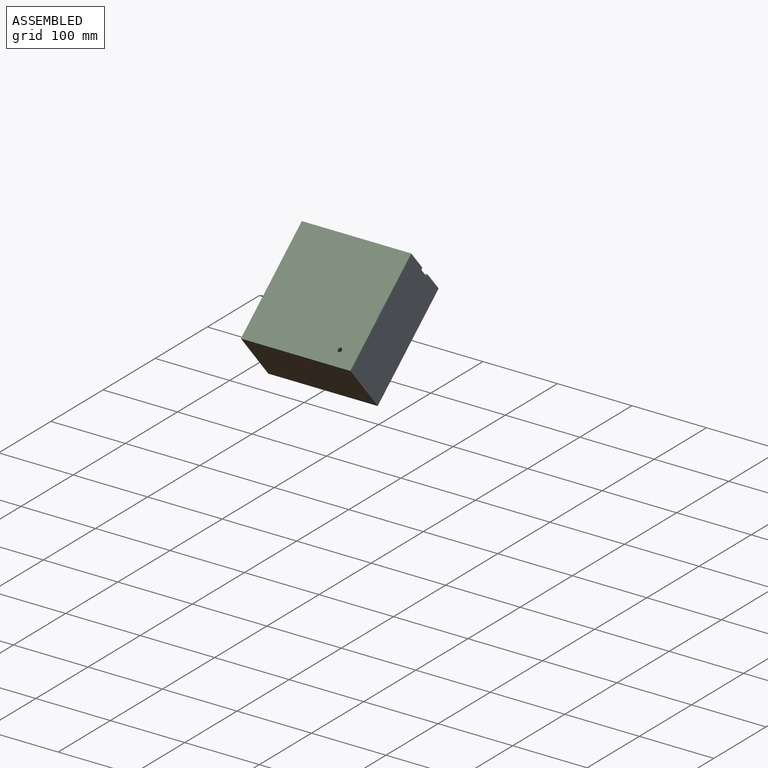
[diagram: assembled view]
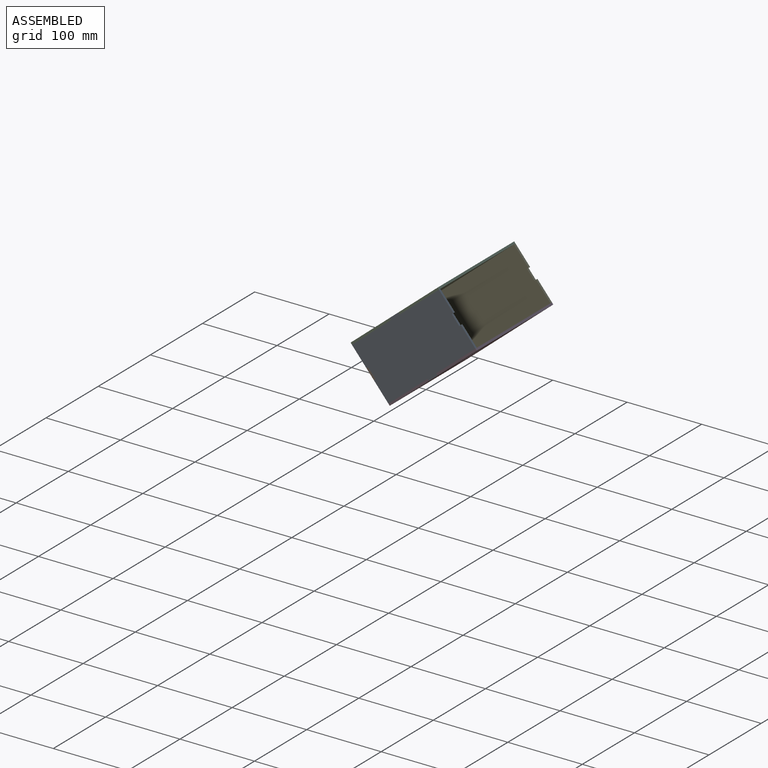
[diagram: assembled view, second angle]
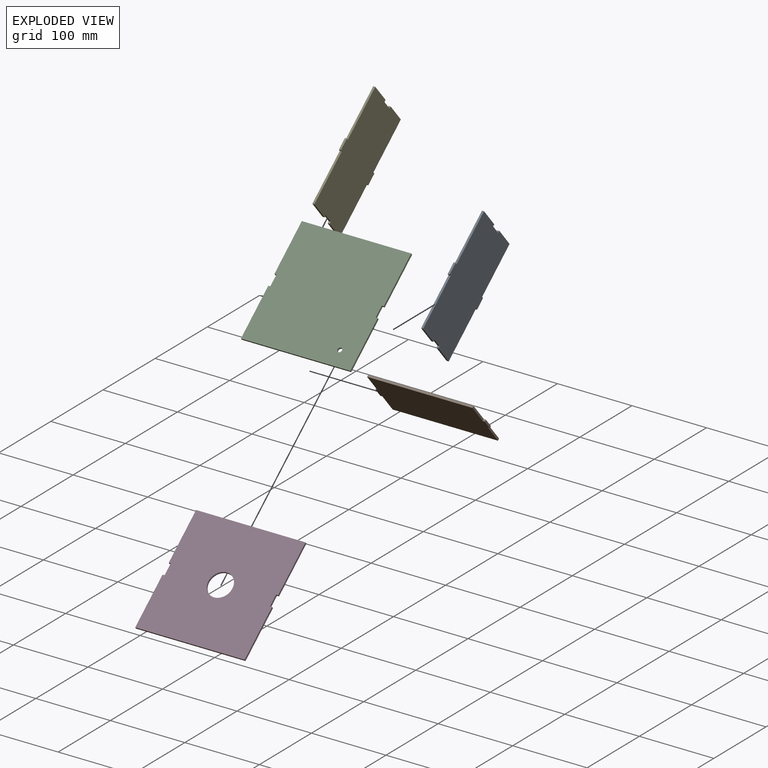
[diagram: exploded view]
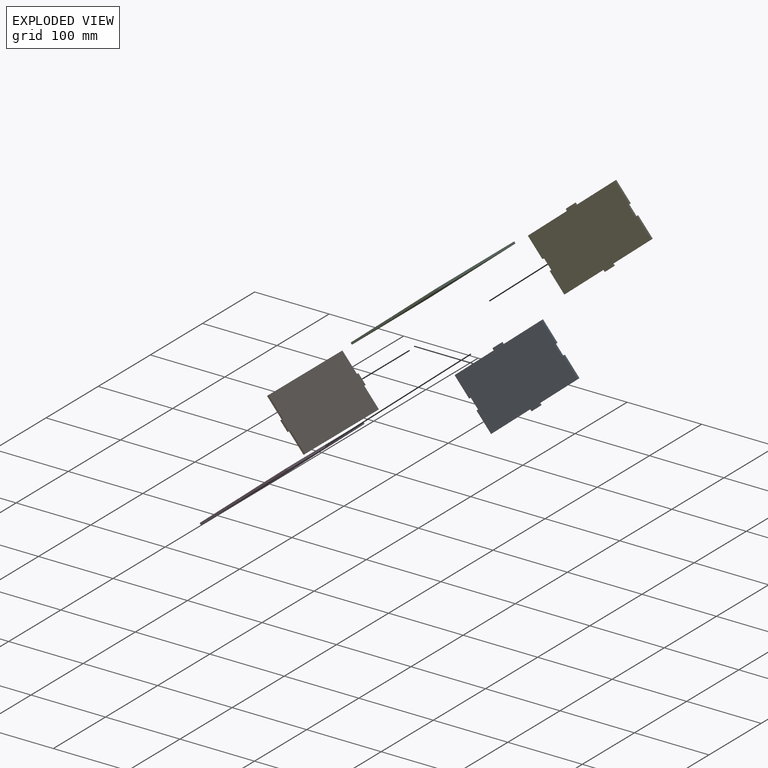
[diagram: exploded view, second angle]
ASSEMBLY  parts=5 mates=4
PART A: 22 faces, bbox 81.7x2.7x152.4 mm
  f0: plane 2.74x2.74mm, normal (1,0,0), area 7.5mm2, adj f1,f19,f20,f21
  f1: plane 15.24x2.74mm, normal (0,0,-1), area 41.8mm2, adj f0,f2,f20,f21
  f2: plane 2.74x2.74mm, normal (-1,0,0), area 7.5mm2, adj f1,f3,f20,f21
  f3: plane 30.48x2.74mm, normal (0,0,-1), area 83.6mm2, adj f2,f4,f20,f21
  f4: plane 68.58x2.74mm, normal (1,0,0), area 188.1mm2, adj f3,f5,f20,f21
  f5: plane 2.74x2.74mm, normal (0,0,-1), area 7.5mm2, adj f4,f6,f20,f21
  f6: plane 15.24x2.74mm, normal (1,0,0), area 41.8mm2, adj f5,f7,f20,f21
  f7: plane 2.74x2.74mm, normal (0,0,1), area 7.5mm2, adj f6,f8,f20,f21
  f8: plane 68.58x2.74mm, normal (1,0,0), area 188.1mm2, adj f7,f9,f20,f21
  f9: plane 30.48x2.74mm, normal (0,0,1), area 83.6mm2, adj f8,f10,f20,f21
  f10: plane 2.74x2.74mm, normal (-1,0,0), area 7.5mm2, adj f9,f11,f20,f21
  f11: plane 15.24x2.74mm, normal (0,0,1), area 41.8mm2, adj f10,f12,f20,f21
  f12: plane 2.74x2.74mm, normal (1,0,0), area 7.5mm2, adj f11,f13,f20,f21
  f13: plane 30.48x2.74mm, normal (0,0,1), area 83.6mm2, adj f12,f14,f20,f21
  f14: plane 68.58x2.74mm, normal (-1,0,0), area 188.1mm2, adj f13,f15,f20,f21
  f15: plane 2.74x2.74mm, normal (0,0,1), area 7.5mm2, adj f14,f16,f20,f21
  f16: plane 15.24x2.74mm, normal (-1,0,0), area 41.8mm2, adj f15,f17,f20,f21
  f17: plane 2.74x2.74mm, normal (0,0,-1), area 7.5mm2, adj f16,f18,f20,f21
  f18: plane 68.58x2.74mm, normal (-1,0,0), area 188.1mm2, adj f17,f19,f20,f21
  f19: plane 30.48x2.74mm, normal (0,0,-1), area 83.6mm2, adj f0,f18,f20,f21
  f20: plane 152.4x81.69mm, normal (0,-1,0), area 11612.9mm2, adj f0,f1,f2,f3,f4,f5,f6,f7
  f21: plane 152.4x81.69mm, normal (0,1,0), area 11612.9mm2, adj f0,f1,f2,f3,f4,f5,f6,f7
PART B: 14 faces, bbox 146.9x2.7x76.2 mm
  f0: plane 30.48x2.74mm, normal (1,0,0), area 83.6mm2, adj f1,f11,f12,f13
  f1: plane 141.4x2.74mm, normal (0,0,1), area 387.9mm2, adj f0,f2,f12,f13
  f2: plane 30.48x2.74mm, normal (-1,0,0), area 83.6mm2, adj f1,f3,f12,f13
  f3: plane 2.74x2.74mm, normal (0,0,1), area 7.5mm2, adj f2,f4,f12,f13
  f4: plane 15.24x2.74mm, normal (-1,0,0), area 41.8mm2, adj f3,f5,f12,f13
  f5: plane 2.74x2.74mm, normal (0,0,-1), area 7.5mm2, adj f4,f6,f12,f13
  f6: plane 30.48x2.74mm, normal (-1,0,0), area 83.6mm2, adj f5,f7,f12,f13
  f7: plane 141.4x2.74mm, normal (0,0,-1), area 387.9mm2, adj f6,f8,f12,f13
  f8: plane 30.48x2.74mm, normal (1,0,0), area 83.6mm2, adj f7,f9,f12,f13
  f9: plane 2.74x2.74mm, normal (0,0,-1), area 7.5mm2, adj f8,f10,f12,f13
  f10: plane 15.24x2.74mm, normal (1,0,0), area 41.8mm2, adj f9,f11,f12,f13
  f11: plane 2.74x2.74mm, normal (0,0,1), area 7.5mm2, adj f0,f10,f12,f13
  f12: plane 146.89x76.2mm, normal (0,-1,0), area 10858.4mm2, adj f0,f1,f2,f3,f4,f5,f6,f7
  f13: plane 146.89x76.2mm, normal (0,1,0), area 10858.4mm2, adj f0,f1,f2,f3,f4,f5,f6,f7
PART C: 15 faces, bbox 146.9x2.7x152.4 mm
  f0: plane 2.74x2.74mm, normal (0,0,1), area 7.5mm2, adj f1,f12,f13,f14
  f1: plane 68.58x2.74mm, normal (-1,0,0), area 188.1mm2, adj f0,f2,f13,f14
  f2: plane 146.89x2.74mm, normal (0,0,-1), area 402.9mm2, adj f1,f3,f13,f14
  f3: plane 68.58x2.74mm, normal (1,0,0), area 188.1mm2, adj f2,f4,f13,f14
  f4: plane 2.74x2.74mm, normal (0,0,1), area 7.5mm2, adj f3,f5,f13,f14
  f5: plane 15.24x2.74mm, normal (1,0,0), area 41.8mm2, adj f4,f6,f13,f14
  f6: plane 2.74x2.74mm, normal (0,0,-1), area 7.5mm2, adj f5,f7,f13,f14
  f7: plane 68.58x2.74mm, normal (1,0,0), area 188.1mm2, adj f6,f8,f13,f14
  f8: plane 146.89x2.74mm, normal (0,0,1), area 402.9mm2, adj f7,f9,f13,f14
  f9: plane 68.58x2.74mm, normal (-1,0,0), area 188.1mm2, adj f8,f10,f13,f14
  f10: plane 2.74x2.74mm, normal (0,0,-1), area 7.5mm2, adj f9,f12,f13,f14
  f11: cylinder r=2.92mm len=5.84mm, axis (0,1,0), area 50.3mm2, adj f13,f14
  f12: plane 15.24x2.74mm, normal (-1,0,0), area 41.8mm2, adj f0,f10,f13,f14
  f13: plane 152.4x146.89mm, normal (0,-1,0), area 22275.3mm2, adj f0,f1,f2,f3,f4,f5,f6,f7
  f14: plane 152.4x146.89mm, normal (0,1,0), area 22275.3mm2, adj f0,f1,f2,f3,f4,f5,f6,f7
PART D: 15 faces, bbox 146.9x2.7x152.4 mm
  f0: plane 2.74x2.74mm, normal (0,0,1), area 7.5mm2, adj f1,f12,f13,f14
  f1: plane 68.58x2.74mm, normal (-1,0,0), area 188.1mm2, adj f0,f2,f13,f14
  f2: plane 146.89x2.74mm, normal (0,0,-1), area 402.9mm2, adj f1,f3,f13,f14
  f3: plane 68.58x2.74mm, normal (1,0,0), area 188.1mm2, adj f2,f4,f13,f14
  f4: plane 2.74x2.74mm, normal (0,0,1), area 7.5mm2, adj f3,f5,f13,f14
  f5: plane 15.24x2.74mm, normal (1,0,0), area 41.8mm2, adj f4,f6,f13,f14
  f6: plane 2.74x2.74mm, normal (0,0,-1), area 7.5mm2, adj f5,f7,f13,f14
  f7: plane 68.58x2.74mm, normal (1,0,0), area 188.1mm2, adj f6,f8,f13,f14
  f8: plane 146.89x2.74mm, normal (0,0,1), area 402.9mm2, adj f7,f9,f13,f14
  f9: plane 68.58x2.74mm, normal (-1,0,0), area 188.1mm2, adj f8,f10,f13,f14
  f10: plane 2.74x2.74mm, normal (0,0,-1), area 7.5mm2, adj f9,f12,f13,f14
  f11: cylinder r=16.15mm len=32.31mm, axis (0,1,0), area 278.4mm2, adj f13,f14
  f12: plane 15.24x2.74mm, normal (-1,0,0), area 41.8mm2, adj f0,f10,f13,f14
  f13: plane 152.4x146.89mm, normal (0,-1,0), area 21482.3mm2, adj f0,f1,f2,f3,f4,f5,f6,f7
  f14: plane 152.4x146.89mm, normal (0,1,0), area 21482.3mm2, adj f0,f1,f2,f3,f4,f5,f6,f7
PART E: same geometry as A
PLACE A rot(axis=(-0.39,-0.39,-0.83),100.3deg) t=(238.15,84.14,44.23)mm
PLACE B rot(axis=(1,0,0),40deg) t=(181.19,29.13,8.03)mm
PLACE C rot(axis=(-1,0,0),50deg) t=(172.33,33.72,51.66)mm
PLACE D rot(axis=(1,0,0),130deg) t=(172.33,146.89,47.15)mm
PLACE E rot(axis=(0.67,-0.67,0.31),145.2deg) t=(91.26,96.47,54.57)mm
MATE fastened E.f15 <-> D.f10  axis (0,-0.77,-0.64) through (92.63,109.84,14.27)mm
MATE fastened B.f3 <-> E.f10  axis (0,-0.64,0.77) through (92.63,28.08,7.14)mm
MATE fastened A.f5 <-> C.f4  axis (0,-0.77,-0.64) through (236.77,59.09,74.74)mm
MATE fastened A.f15 <-> D.f4  axis (0,0.77,0.64) through (236.77,121.51,24.06)mm
